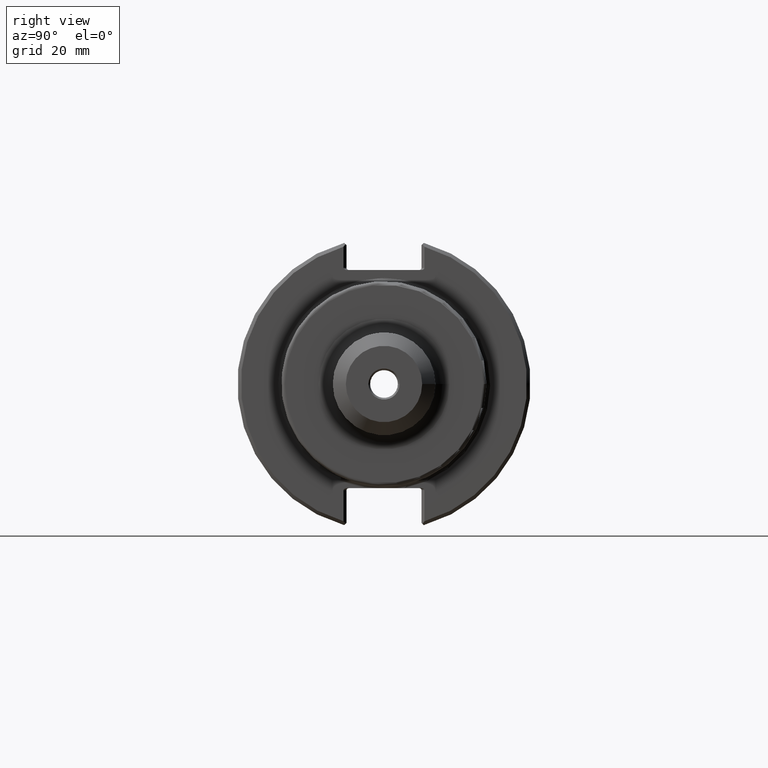
[diagram: clean part render]
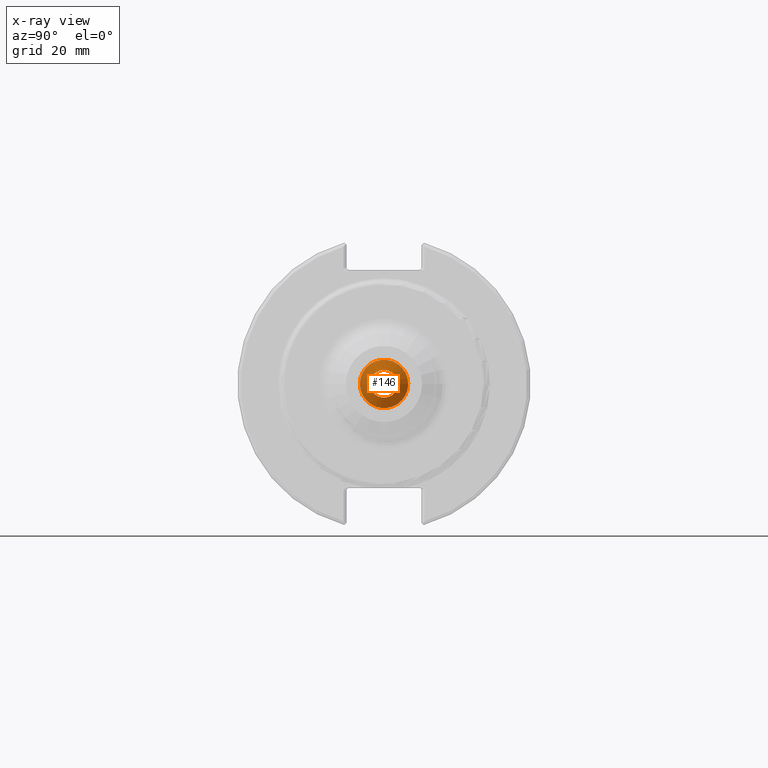
[diagram: x-ray — body ghosted, one internal face saturated and labeled with its STEP entity id]
A machine part, right view, then the same camera in x-ray: the body is ghosted and one INTERNAL B-rep face — a face not visible from any outside direction — is saturated and labeled: STEP entity #146.
In plain terms, the highlighted conical surface has half-angle 59 deg.
Its self-contained STEP definition (entity closure, byte-faithful):
#119=CARTESIAN_POINT('',(1.759038858914596,0.0,0.0));
#120=DIRECTION('',(-1.0,0.0,0.0));
#121=DIRECTION('',(0.0,-1.0,0.0));
#122=AXIS2_PLACEMENT_3D('',#119,#120,#121);
#123=CONICAL_SURFACE('',#122,0.10325,59.000000000000007);
#124=CARTESIAN_POINT('',(1.750116078722037,-0.1181,1.446308E-017));
#125=VERTEX_POINT('',#124);
#126=CARTESIAN_POINT('',(1.750116078722037,0.0,0.0));
#127=DIRECTION('',(-1.0,0.0,0.0));
#128=DIRECTION('',(0.0,1.0,0.0));
#129=AXIS2_PLACEMENT_3D('',#126,#127,#128);
#130=CIRCLE('',#129,0.1181);
#131=EDGE_CURVE('',#125,#125,#130,.T.);
#132=ORIENTED_EDGE('',*,*,#131,.F.);
#133=EDGE_LOOP('',(#132));
#134=FACE_OUTER_BOUND('',#133,.T.);
#135=CARTESIAN_POINT('',(1.697,-0.2065,0.0));
#136=VERTEX_POINT('',#135);
#137=CARTESIAN_POINT('',(1.697,0.0,0.0));
#138=DIRECTION('',(-1.0,0.0,0.0));
#139=DIRECTION('',(0.0,-1.0,0.0));
#140=AXIS2_PLACEMENT_3D('',#137,#138,#139);
#141=CIRCLE('',#140,0.2065);
#142=EDGE_CURVE('',#136,#136,#141,.T.);
#143=ORIENTED_EDGE('',*,*,#142,.T.);
#144=EDGE_LOOP('',(#143));
#145=FACE_BOUND('',#144,.T.);
#146=ADVANCED_FACE('',(#134,#145),#123,.F.);